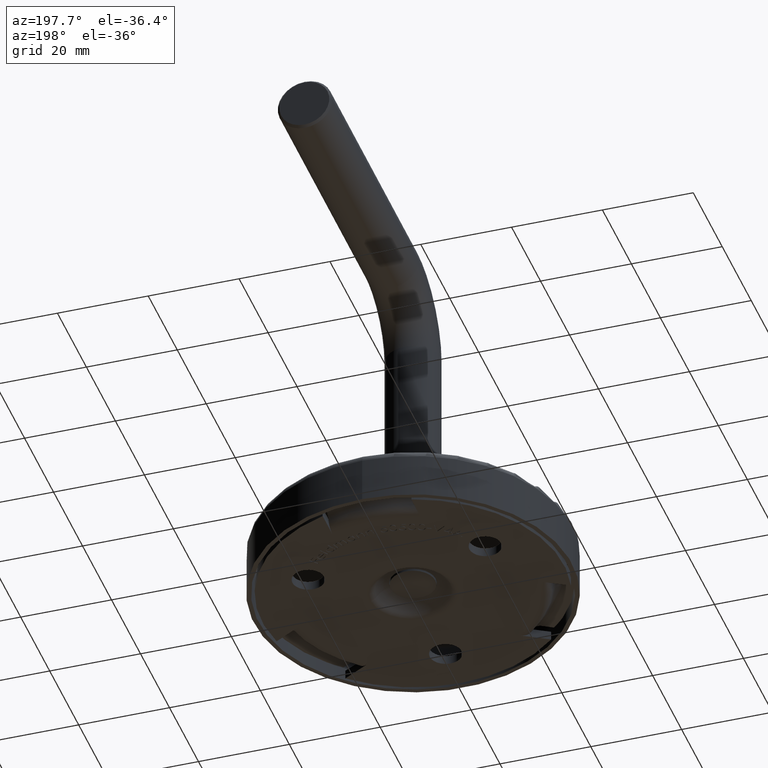
[diagram: clean part render]
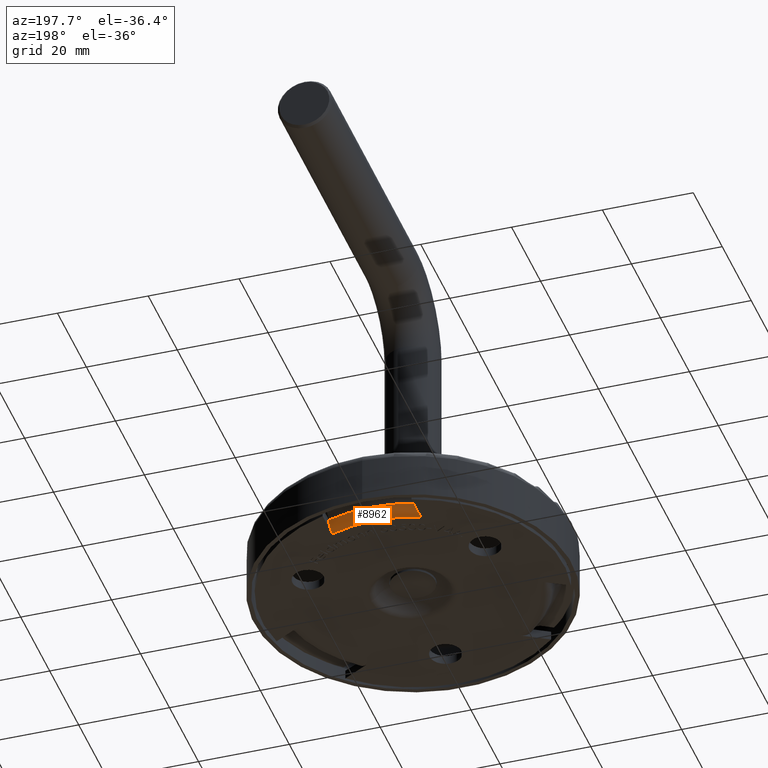
[diagram: same view with one face highlighted and labeled with its STEP entity id]
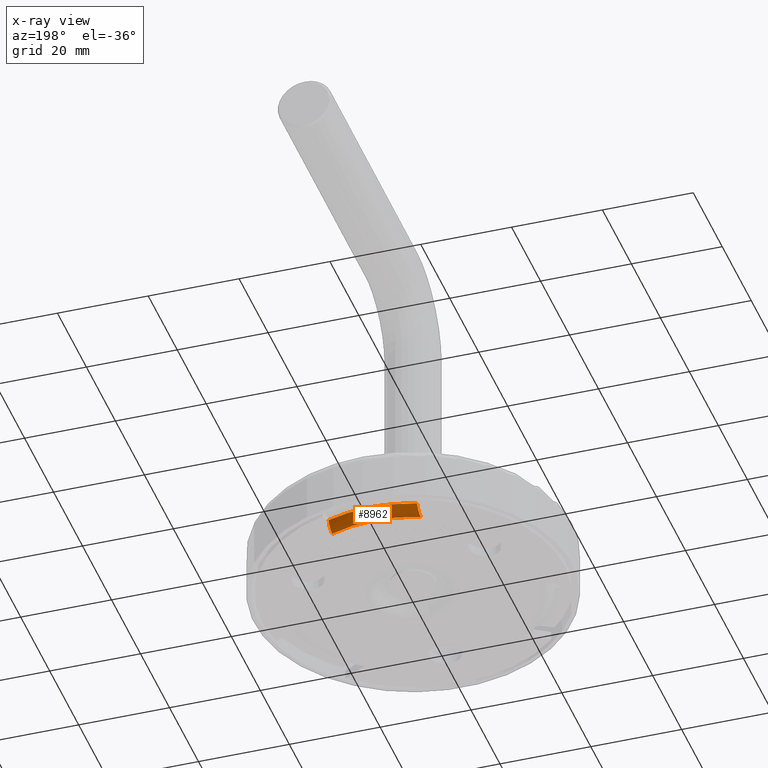
[diagram: x-ray of the same camera — body ghosted, the highlighted face saturated]
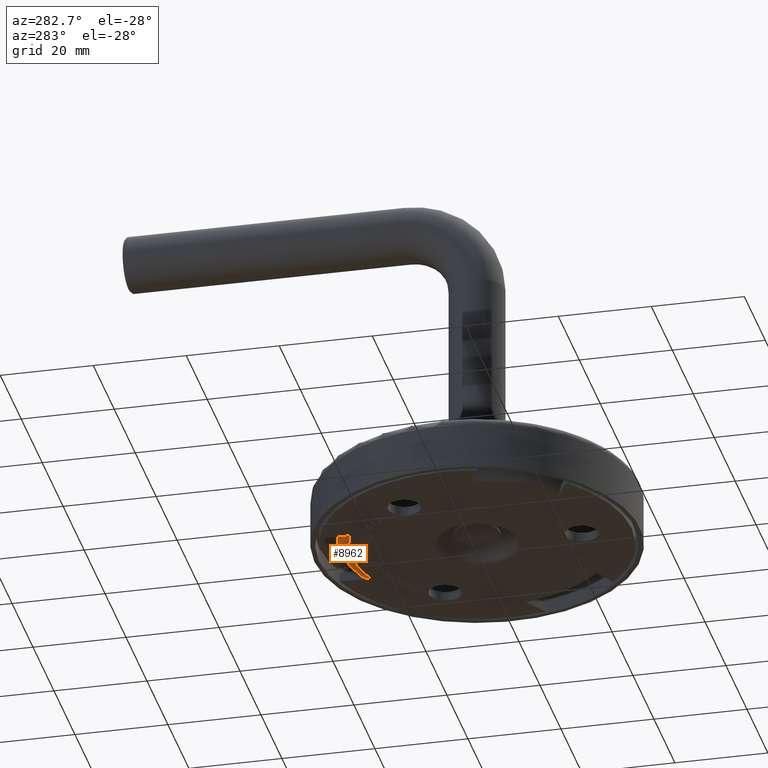
[diagram: same view with one face highlighted and labeled with its STEP entity id]
A machine part, auxiliary view. The second image highlights one B-rep face of the part: STEP entity #8962.
The next image is the same camera in x-ray: the body ghosted, the highlighted face saturated — about 0% of this face is hidden behind the body in this view.
A second angle (auxiliary view) of the same face is appended — the face is thin or edge-on in the first view.
In plain terms, the highlighted toroidal blend (fillet) surface has major radius 27 mm and minor (blend) radius 2.5 mm.
Its self-contained STEP definition (entity closure, byte-faithful):
#44 = ORIENTED_EDGE ( 'NONE', *, *, #10310, .F. ) ;
#323 = TOROIDAL_SURFACE ( 'NONE', #4219, 27.00000000000000000, 2.500000000000000000 ) ;
#404 = CARTESIAN_POINT ( 'NONE',  ( 9.749999999999944900, 27.72922376181760000, -1.777777777777763000 ) ) ;
#569 = VERTEX_POINT ( 'NONE', #7150 ) ;
#715 = VERTEX_POINT ( 'NONE', #404 ) ;
#923 = CARTESIAN_POINT ( 'NONE',  ( -9.749999999999939600, 27.50394601152508800, -1.270257818520935400 ) ) ;
#960 = CARTESIAN_POINT ( 'NONE',  ( 9.749999999999944900, 26.51738820769766700, -0.3205698162079581600 ) ) ;
#977 = CARTESIAN_POINT ( 'NONE',  ( -9.749999999999943200, 25.73068768799657800, -0.05040053117614912800 ) ) ;
#1018 = CARTESIAN_POINT ( 'NONE',  ( -9.749999999999948500, 25.17811549739165500, 4.998920531665251900E-030 ) ) ;
#1078 = B_SPLINE_CURVE_WITH_KNOTS ( 'NONE', 3,
 ( #1018, #3220, #12303, #977, #7816, #4368, #10059, #5539, #14543, #13346, #923, #4263, #5339, #6596 ),
 .UNSPECIFIED., .F., .F.,
 ( 4, 2, 2, 2, 2, 2, 4 ),
 ( 0.002545699296573997400, 0.002959319530472570100, 0.003372939764371142900, 0.004200180232168278900, 0.005027420699965414900, 0.005441040933863985600, 0.005854661167762557000 ),
 .UNSPECIFIED. ) ;
#1587 = CARTESIAN_POINT ( 'NONE',  ( 1.873462794125674700E-030, 3.725176496876977300E-031, -1.777777777777763000 ) ) ;
#2027 = ORIENTED_EDGE ( 'NONE', *, *, #8093, .T. ) ;
#2064 = CARTESIAN_POINT ( 'NONE',  ( 9.749999999999944900, 27.72922376181760000, -1.777777777777763000 ) ) ;
#2265 = CARTESIAN_POINT ( 'NONE',  ( 9.749999999999944900, 25.17811549739165500, -1.555062449140075000E-029 ) ) ;
#2890 = VERTEX_POINT ( 'NONE', #2265 ) ;
#3220 = CARTESIAN_POINT ( 'NONE',  ( -9.749999999999939600, 25.31673314356674400, 4.065218163316767000E-014 ) ) ;
#3262 = CARTESIAN_POINT ( 'NONE',  ( 9.749999999999944900, 25.86518733691250200, -0.08028949668662335700 ) ) ;
#3420 = DIRECTION ( 'NONE',  ( 1.053822821695700200E-030, 2.095411779493315200E-031, -1.000000000000000000 ) ) ;
#4201 = AXIS2_PLACEMENT_3D ( 'NONE', #10265, #3420, #11297 ) ;
#4219 = AXIS2_PLACEMENT_3D ( 'NONE', #13107, #6250, #6347 ) ;
#4263 = CARTESIAN_POINT ( 'NONE',  ( -9.749999999999937800, 27.63302740045429200, -1.516826420825817300 ) ) ;
#4368 = CARTESIAN_POINT ( 'NONE',  ( -9.749999999999937800, 26.26154882498629900, -0.1996587008498619000 ) ) ;
#5147 = DIRECTION ( 'NONE',  ( 1.053822821695700200E-030, 2.095411779493315200E-031, -1.000000000000000000 ) ) ;
#5339 = CARTESIAN_POINT ( 'NONE',  ( -9.749999999999937800, 27.68717208836940800, -1.646310791556821600 ) ) ;
#5539 = CARTESIAN_POINT ( 'NONE',  ( -9.749999999999939600, 26.97269042750902200, -0.6305043740297879800 ) ) ;
#5757 = EDGE_CURVE ( 'NONE', #569, #2890, #11497, .T. ) ;
#6250 = DIRECTION ( 'NONE',  ( 1.053822821695700200E-030, 2.095411779493315200E-031, -1.000000000000000000 ) ) ;
#6347 = DIRECTION ( 'NONE',  ( -1.000000000000000000, -8.381647117973246900E-031, -1.053822821695700200E-030 ) ) ;
#6596 = CARTESIAN_POINT ( 'NONE',  ( -9.749999999999948500, 27.72922376181760000, -1.777777777777763700 ) ) ;
#6985 = ORIENTED_EDGE ( 'NONE', *, *, #5757, .T. ) ;
#7150 = CARTESIAN_POINT ( 'NONE',  ( -9.749999999999948500, 25.17811549739165500, 4.998920531665251900E-030 ) ) ;
#7473 = CIRCLE ( 'NONE', #11192, 29.39340658094855700 ) ;
#7802 = CARTESIAN_POINT ( 'NONE',  ( 9.749999999999944900, 25.73068768799656800, -0.05040053117614939200 ) ) ;
#7816 = CARTESIAN_POINT ( 'NONE',  ( -9.749999999999939600, 25.86518733691249500, -0.08028949668662284400 ) ) ;
#7943 = CARTESIAN_POINT ( 'NONE',  ( 9.749999999999944900, 25.45698178835287000, -0.01020897414363948000 ) ) ;
#8093 = EDGE_CURVE ( 'NONE', #2890, #715, #11154, .T. ) ;
#8230 = ORIENTED_EDGE ( 'NONE', *, *, #11660, .F. ) ;
#8880 = CARTESIAN_POINT ( 'NONE',  ( 9.749999999999946700, 25.31673314356675100, 4.090851497883050300E-014 ) ) ;
#8962 = ADVANCED_FACE ( 'NONE', ( #14763 ), #323, .T. ) ;
#9509 = CARTESIAN_POINT ( 'NONE',  ( -9.749999999999948500, 27.72922376181760000, -1.777777777777763700 ) ) ;
#10042 = CARTESIAN_POINT ( 'NONE',  ( 9.749999999999944900, 26.26154882498630300, -0.1996587008498623100 ) ) ;
#10059 = CARTESIAN_POINT ( 'NONE',  ( -9.749999999999939600, 26.51738820769766400, -0.3205698162079567100 ) ) ;
#10194 = CARTESIAN_POINT ( 'NONE',  ( 9.749999999999943200, 27.42971639261806200, -1.153958297040348400 ) ) ;
#10248 = VERTEX_POINT ( 'NONE', #9509 ) ;
#10265 = CARTESIAN_POINT ( 'NONE',  ( 0.0000000000000000000, 0.0000000000000000000, 0.0000000000000000000 ) ) ;
#10310 = EDGE_CURVE ( 'NONE', #10248, #715, #7473, .T. ) ;
#11112 = EDGE_LOOP ( 'NONE', ( #6985, #2027, #44, #8230 ) ) ;
#11154 = B_SPLINE_CURVE_WITH_KNOTS ( 'NONE', 3,
 ( #12442, #8880, #7943, #7802, #3262, #10042, #960, #11231, #14572, #10194, #11334, #12395, #12488, #2064 ),
 .UNSPECIFIED., .F., .F.,
 ( 4, 2, 2, 2, 2, 2, 4 ),
 ( 0.002545699296574000000, 0.002959319530472565400, 0.003372939764371130800, 0.004200180232168271100, 0.005027420699965411500, 0.005441040933863985600, 0.005854661167762558800 ),
 .UNSPECIFIED. ) ;
#11192 = AXIS2_PLACEMENT_3D ( 'NONE', #1587, #5147, #14147 ) ;
#11231 = CARTESIAN_POINT ( 'NONE',  ( 9.749999999999946700, 26.97269042750902600, -0.6305043740297898700 ) ) ;
#11297 = DIRECTION ( 'NONE',  ( -1.000000000000000000, -8.381647117973245200E-031, 1.053822821695697400E-030 ) ) ;
#11334 = CARTESIAN_POINT ( 'NONE',  ( 9.749999999999944900, 27.50394601152507000, -1.270257818520937700 ) ) ;
#11497 = CIRCLE ( 'NONE', #4201, 26.99999999999990100 ) ;
#11660 = EDGE_CURVE ( 'NONE', #569, #10248, #1078, .T. ) ;
#12303 = CARTESIAN_POINT ( 'NONE',  ( -9.749999999999943200, 25.45698178835287000, -0.01020897414363953300 ) ) ;
#12395 = CARTESIAN_POINT ( 'NONE',  ( 9.749999999999946700, 27.63302740045429200, -1.516826420825820000 ) ) ;
#12442 = CARTESIAN_POINT ( 'NONE',  ( 9.749999999999944900, 25.17811549739165500, -1.555062449140075000E-029 ) ) ;
#12488 = CARTESIAN_POINT ( 'NONE',  ( 9.749999999999943200, 27.68717208836940800, -1.646310791556820700 ) ) ;
#13107 = CARTESIAN_POINT ( 'NONE',  ( 2.634557054239233200E-030, 5.238529448733252600E-031, -2.499999999999985300 ) ) ;
#13346 = CARTESIAN_POINT ( 'NONE',  ( -9.749999999999939600, 27.42971639261806200, -1.153958297040347200 ) ) ;
#14147 = DIRECTION ( 'NONE',  ( -1.000000000000000000, -8.381647117973246900E-031, 0.0000000000000000000 ) ) ;
#14543 = CARTESIAN_POINT ( 'NONE',  ( -9.749999999999939600, 27.17950155649118600, -0.8249033078627732200 ) ) ;
#14572 = CARTESIAN_POINT ( 'NONE',  ( 9.749999999999943200, 27.17950155649118600, -0.8249033078627738800 ) ) ;
#14763 = FACE_OUTER_BOUND ( 'NONE', #11112, .T. ) ;